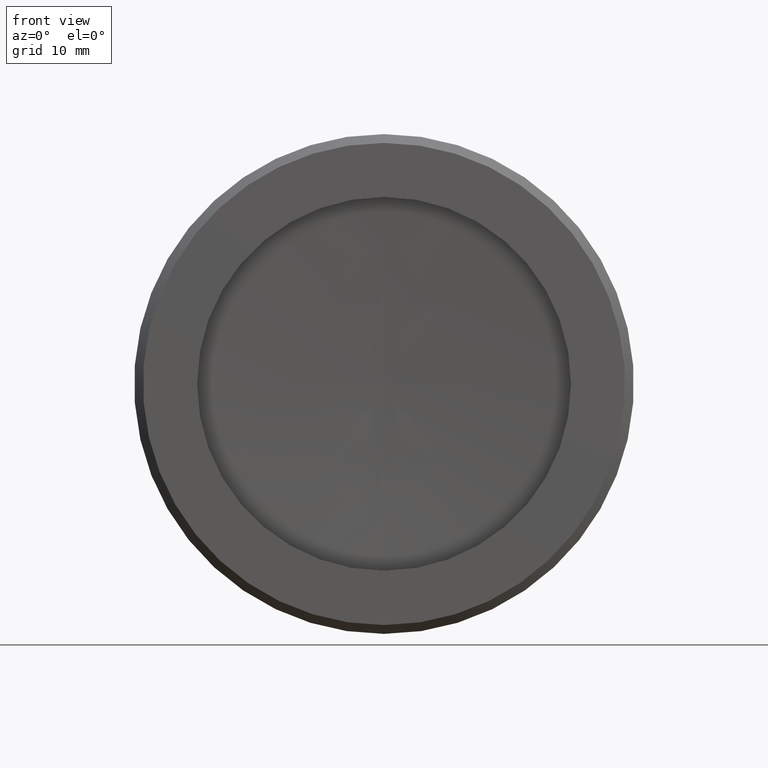
[diagram: clean part render]
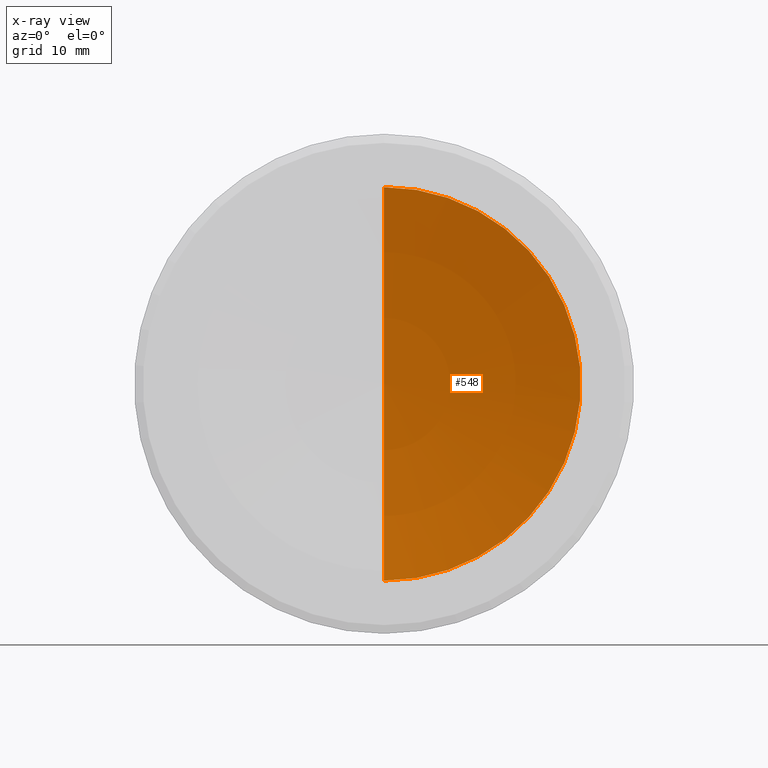
[diagram: x-ray — body ghosted, one internal face saturated and labeled with its STEP entity id]
A machine part, front view, then the same camera in x-ray: the body is ghosted and one INTERNAL B-rep face — a face not visible from any outside direction — is saturated and labeled: STEP entity #548.
In plain terms, the highlighted spherical surface has radius 90.5 mm.
Its self-contained STEP definition (entity closure, byte-faithful):
#36 = CARTESIAN_POINT ( 'NONE',  ( -8.905217641199627110, -105.1915581985831665, 26.65036394347451676 ) ) ;
#66 = EDGE_CURVE ( 'NONE', #1313, #686, #1655, .T. ) ;
#183 = AXIS2_PLACEMENT_3D ( 'NONE', #329, #1500, #710 ) ;
#294 = EDGE_LOOP ( 'NONE', ( #1193, #1666 ) ) ;
#329 = CARTESIAN_POINT ( 'NONE',  ( -8.905217641199635992, -16.92916530104155015, 26.65036394347453808 ) ) ;
#476 = EDGE_CURVE ( 'NONE', #686, #1313, #1546, .T. ) ;
#539 = AXIS2_PLACEMENT_3D ( 'NONE', #593, #1246, #1505 ) ;
#548 = ADVANCED_FACE ( 'NONE', ( #1515 ), #981, .T. ) ;
#593 = CARTESIAN_POINT ( 'NONE',  ( -8.905217641199627110, -105.1915581985831665, 26.65036394347451676 ) ) ;
#624 = AXIS2_PLACEMENT_3D ( 'NONE', #36, #726, #1350 ) ;
#686 = VERTEX_POINT ( 'NONE', #1664 ) ;
#710 = DIRECTION ( 'NONE',  ( 0.000000000000000000, 0.000000000000000000, 1.000000000000000000 ) ) ;
#726 = DIRECTION ( 'NONE',  ( 1.000000000000000000, 1.224646799147353207E-16, 1.224646799147351975E-16 ) ) ;
#981 = SPHERICAL_SURFACE ( 'NONE', #539, 90.50000000000000000 ) ;
#1035 = CARTESIAN_POINT ( 'NONE',  ( -8.905217641199635992, -16.92916530104155015, 46.65036394347453808 ) ) ;
#1193 = ORIENTED_EDGE ( 'NONE', *, *, #66, .T. ) ;
#1246 = DIRECTION ( 'NONE',  ( 1.224646799147353207E-16, -1.000000000000000000, 0.000000000000000000 ) ) ;
#1313 = VERTEX_POINT ( 'NONE', #1035 ) ;
#1350 = DIRECTION ( 'NONE',  ( -1.150092912249816941E-16, 0.000000000000000000, 1.000000000000000000 ) ) ;
#1500 = DIRECTION ( 'NONE',  ( -1.224646799147353207E-16, 1.000000000000000000, 0.000000000000000000 ) ) ;
#1505 = DIRECTION ( 'NONE',  ( 0.000000000000000000, 0.000000000000000000, 1.000000000000000000 ) ) ;
#1515 = FACE_OUTER_BOUND ( 'NONE', #294, .T. ) ;
#1546 = CIRCLE ( 'NONE', #624, 90.50000000000000000 ) ;
#1655 = CIRCLE ( 'NONE', #183, 19.99999999999999645 ) ;
#1664 = CARTESIAN_POINT ( 'NONE',  ( -8.905217641199632439, -16.92916530104155015, 6.650363943474537187 ) ) ;
#1666 = ORIENTED_EDGE ( 'NONE', *, *, #476, .T. ) ;